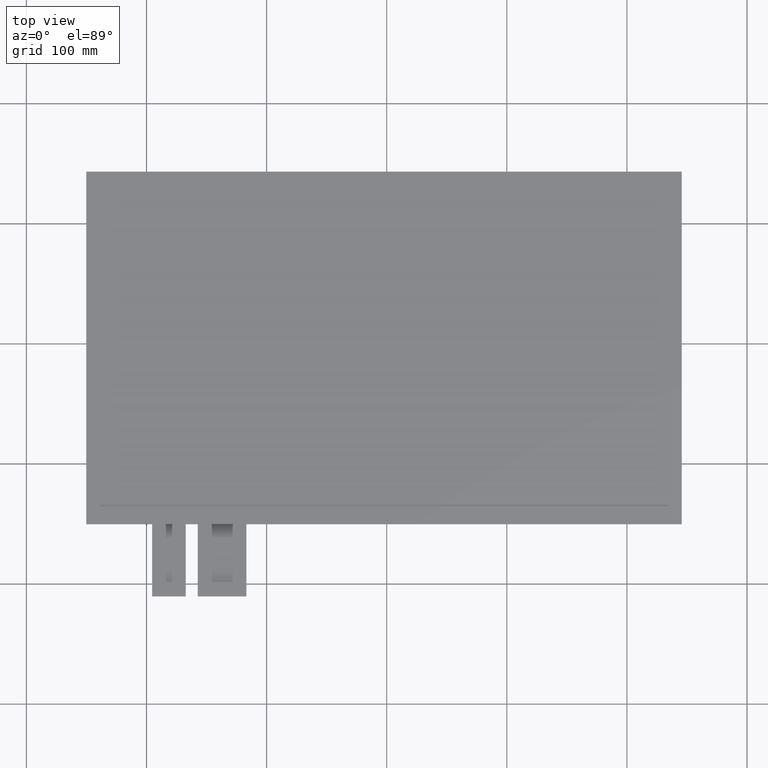
[diagram: clean part render]
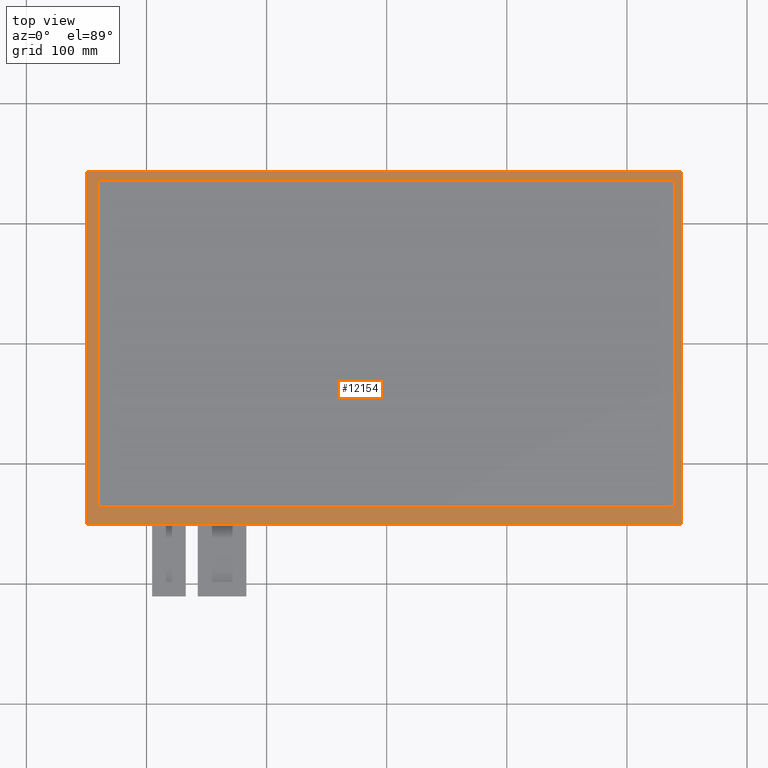
[diagram: same view with one face highlighted and labeled with its STEP entity id]
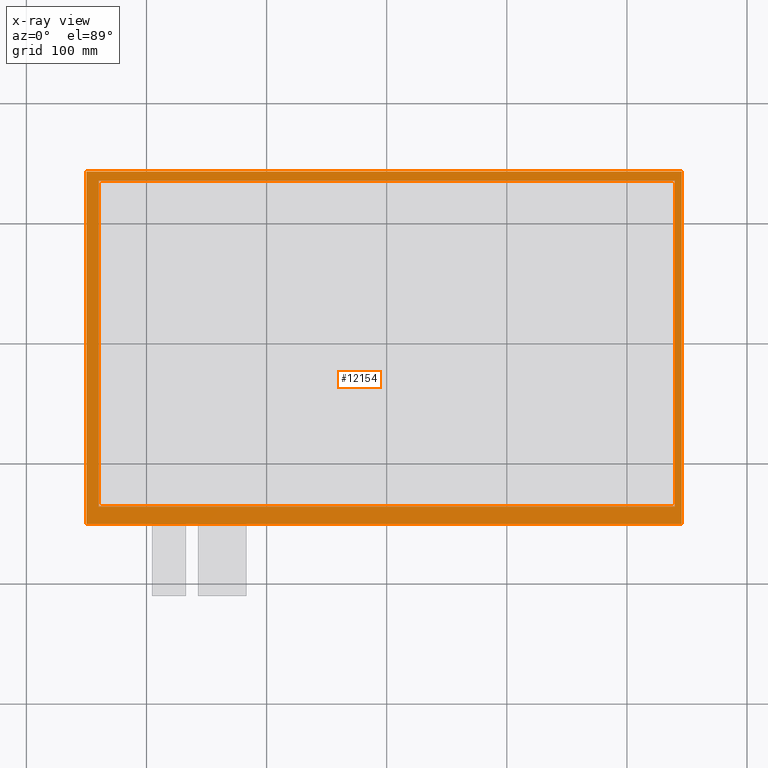
[diagram: x-ray of the same camera — body ghosted, the highlighted face saturated]
A machine part, top view. The second image highlights one B-rep face of the part: STEP entity #12154.
The next image is the same camera in x-ray: the body ghosted, the highlighted face saturated — about 0% of this face is hidden behind the body in this view.
In plain terms, the highlighted planar face has unit normal (0, 0, 1).
Its self-contained STEP definition (entity closure, byte-faithful):
#126=FACE_BOUND('',#1854,.T.);
#696=PLANE('',#12760);
#1274=FACE_OUTER_BOUND('',#1853,.T.);
#1853=EDGE_LOOP('',(#11539,#11540,#11541,#11542));
#1854=EDGE_LOOP('',(#11543,#11544,#11545,#11546));
#3547=LINE('',#19039,#5255);
#3551=LINE('',#19047,#5259);
#3554=LINE('',#19053,#5262);
#3557=LINE('',#19058,#5265);
#3559=LINE('',#19064,#5267);
#3560=LINE('',#19066,#5268);
#3561=LINE('',#19068,#5269);
#3562=LINE('',#19069,#5270);
#5255=VECTOR('',#15603,10.);
#5259=VECTOR('',#15609,10.);
#5262=VECTOR('',#15614,10.);
#5265=VECTOR('',#15619,10.);
#5267=VECTOR('',#15625,10.);
#5268=VECTOR('',#15626,10.);
#5269=VECTOR('',#15627,10.);
#5270=VECTOR('',#15628,10.);
#6415=VERTEX_POINT('',#19037);
#6416=VERTEX_POINT('',#19038);
#6419=VERTEX_POINT('',#19046);
#6421=VERTEX_POINT('',#19052);
#6423=VERTEX_POINT('',#19062);
#6424=VERTEX_POINT('',#19063);
#6425=VERTEX_POINT('',#19065);
#6426=VERTEX_POINT('',#19067);
#8123=EDGE_CURVE('',#6415,#6416,#3547,.T.);
#8127=EDGE_CURVE('',#6419,#6415,#3551,.T.);
#8130=EDGE_CURVE('',#6421,#6419,#3554,.T.);
#8133=EDGE_CURVE('',#6416,#6421,#3557,.T.);
#8135=EDGE_CURVE('',#6423,#6424,#3559,.T.);
#8136=EDGE_CURVE('',#6424,#6425,#3560,.T.);
#8137=EDGE_CURVE('',#6425,#6426,#3561,.T.);
#8138=EDGE_CURVE('',#6426,#6423,#3562,.T.);
#11539=ORIENTED_EDGE('',*,*,#8135,.T.);
#11540=ORIENTED_EDGE('',*,*,#8136,.T.);
#11541=ORIENTED_EDGE('',*,*,#8137,.T.);
#11542=ORIENTED_EDGE('',*,*,#8138,.T.);
#11543=ORIENTED_EDGE('',*,*,#8123,.T.);
#11544=ORIENTED_EDGE('',*,*,#8133,.T.);
#11545=ORIENTED_EDGE('',*,*,#8130,.T.);
#11546=ORIENTED_EDGE('',*,*,#8127,.T.);
#12154=ADVANCED_FACE('',(#1274,#126),#696,.T.);
#12760=AXIS2_PLACEMENT_3D('',#19061,#15623,#15624);
#15603=DIRECTION('',(-2.61902961946222E-16,1.,0.));
#15609=DIRECTION('',(-1.,-1.4806058257139E-16,0.));
#15614=DIRECTION('',(0.,-1.,0.));
#15619=DIRECTION('',(1.,0.,0.));
#15623=DIRECTION('center_axis',(0.,0.,1.));
#15624=DIRECTION('ref_axis',(1.,0.,0.));
#15625=DIRECTION('',(-1.,0.,0.));
#15626=DIRECTION('',(1.2100523429157E-16,-1.,0.));
#15627=DIRECTION('',(1.,1.0748427830175E-16,0.));
#15628=DIRECTION('',(-1.2100523429157E-16,1.,0.));
#19037=CARTESIAN_POINT('',(-239.95,-135.65,0.));
#19038=CARTESIAN_POINT('',(-239.95,135.65,0.));
#19039=CARTESIAN_POINT('',(-239.95,-69.6000000000001,0.));
#19046=CARTESIAN_POINT('',(239.95,-135.65,0.));
#19047=CARTESIAN_POINT('',(118.85,-135.65,0.));
#19052=CARTESIAN_POINT('',(239.95,135.65,0.));
#19053=CARTESIAN_POINT('',(239.95,66.05,0.));
#19058=CARTESIAN_POINT('',(-121.1,135.65,0.));
#19061=CARTESIAN_POINT('Origin',(-2.24999999999996,-3.55,0.));
#19062=CARTESIAN_POINT('',(245.65,143.25,0.));
#19063=CARTESIAN_POINT('',(-250.15,143.25,0.));
#19064=CARTESIAN_POINT('',(245.65,143.25,0.));
#19065=CARTESIAN_POINT('',(-250.15,-150.35,0.));
#19066=CARTESIAN_POINT('',(-250.15,143.25,0.));
#19067=CARTESIAN_POINT('',(245.65,-150.35,0.));
#19068=CARTESIAN_POINT('',(-250.15,-150.35,0.));
#19069=CARTESIAN_POINT('',(245.65,-150.35,0.));